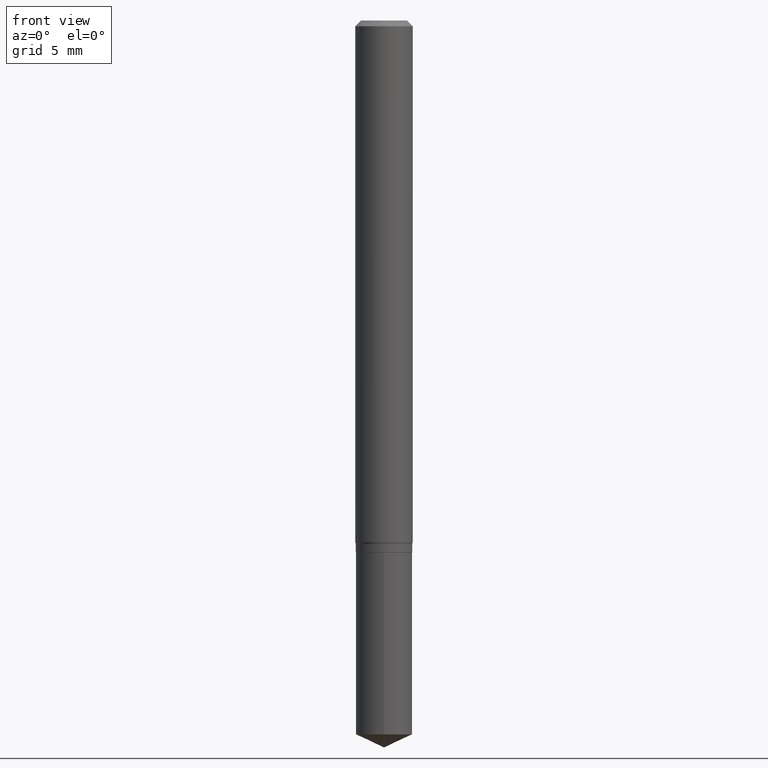
[diagram: clean part render]
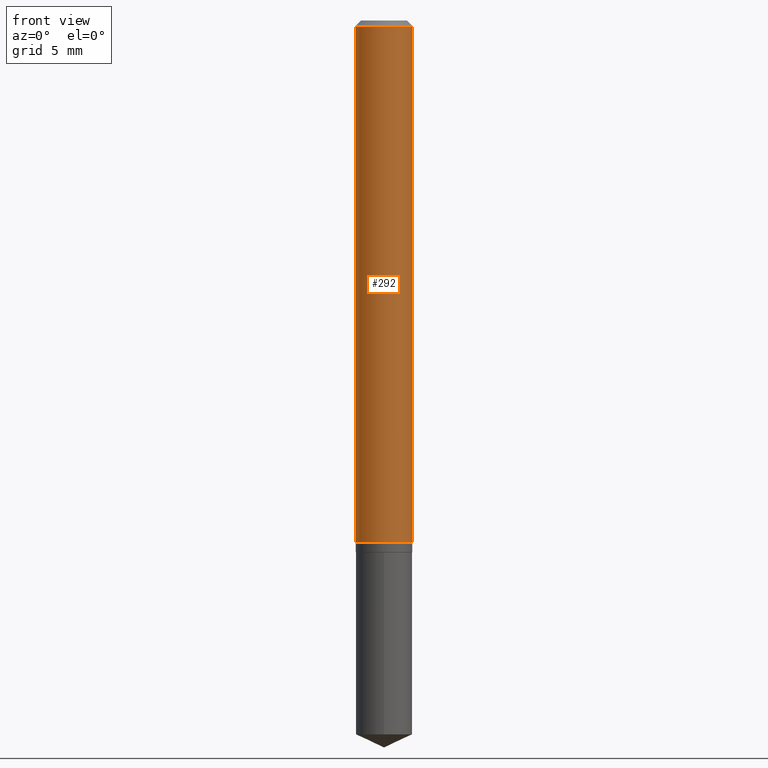
[diagram: same view with one face highlighted and labeled with its STEP entity id]
A machine part, front view. The second image highlights one B-rep face of the part: STEP entity #292.
In plain terms, the highlighted cylindrical surface (edge-blend (fillet) strip) has radius 1.4999 mm, axis along (-0, 0, 1).
Its self-contained STEP definition (entity closure, byte-faithful):
#14 = DIRECTION ( 'NONE',  ( -2.445468806185136877E-29, 3.491481338843145188E-15, 1.000000000000000000 ) ) ;
#16 = CARTESIAN_POINT ( 'NONE',  ( 0.05904999999999999832, -4.535783407291118600E-16, -0.01181000000000006350 ) ) ;
#37 = CYLINDRICAL_SURFACE ( 'NONE', #446, 0.05905000000000006771 ) ;
#71 = VERTEX_POINT ( 'NONE', #453 ) ;
#77 = DIRECTION ( 'NONE',  ( -2.445468806185136597E-29, 3.491481338843145583E-15, 1.000000000000000000 ) ) ;
#123 = CARTESIAN_POINT ( 'NONE',  ( -0.05904999999999999832, -1.474863793998382890E-15, -0.01181000000000006350 ) ) ;
#128 = ORIENTED_EDGE ( 'NONE', *, *, #481, .F. ) ;
#138 = VECTOR ( 'NONE', #295, 39.37007874015748143 ) ;
#152 = LINE ( 'NONE', #332, #138 ) ;
#170 = CIRCLE ( 'NONE', #394, 0.05905000000000013016 ) ;
#214 = ORIENTED_EDGE ( 'NONE', *, *, #228, .F. ) ;
#216 = EDGE_CURVE ( 'NONE', #71, #363, #277, .T. ) ;
#219 = CARTESIAN_POINT ( 'NONE',  ( 0.05905000000000006771, -4.123439461173745257E-16, 2.879382386107503723E-30 ) ) ;
#225 = CARTESIAN_POINT ( 'NONE',  ( -0.05905000000000013016, -3.328068678851369121E-15, -1.073367949192430615 ) ) ;
#228 = EDGE_CURVE ( 'NONE', #370, #363, #422, .T. ) ;
#249 = CARTESIAN_POINT ( 'NONE',  ( 2.888098660104662014E-31, -4.123439461173777182E-17, -0.01181000000000006350 ) ) ;
#254 = DIRECTION ( 'NONE',  ( 1.000000000000000000, -6.982962677686266711E-15, 0.000000000000000000 ) ) ;
#257 = EDGE_LOOP ( 'NONE', ( #128, #300, #421, #214 ) ) ;
#262 = EDGE_CURVE ( 'NONE', #291, #71, #170, .T. ) ;
#277 = LINE ( 'NONE', #219, #414 ) ;
#290 = CARTESIAN_POINT ( 'NONE',  ( 0.000000000000000000, 0.000000000000000000, 0.000000000000000000 ) ) ;
#291 = VERTEX_POINT ( 'NONE', #225 ) ;
#292 = ADVANCED_FACE ( 'NONE', ( #407 ), #37, .T. ) ;
#293 = DIRECTION ( 'NONE',  ( 1.000000000000000000, -6.982962677686266711E-15, 4.876176775795936353E-29 ) ) ;
#295 = DIRECTION ( 'NONE',  ( -2.445468806185136877E-29, 3.491481338843145188E-15, 1.000000000000000000 ) ) ;
#296 = AXIS2_PLACEMENT_3D ( 'NONE', #249, #362, #254 ) ;
#297 = DIRECTION ( 'NONE',  ( -2.445468806185136597E-29, 3.491481338843145583E-15, 1.000000000000000000 ) ) ;
#300 = ORIENTED_EDGE ( 'NONE', *, *, #262, .T. ) ;
#310 = CARTESIAN_POINT ( 'NONE',  ( 2.624887837309001649E-29, -3.747644164317709009E-15, -1.073367949192430615 ) ) ;
#327 = DIRECTION ( 'NONE',  ( 1.000000000000000000, -6.982962677686265133E-15, 0.000000000000000000 ) ) ;
#332 = CARTESIAN_POINT ( 'NONE',  ( -0.05905000000000006771, 4.195754854663396409E-16, -2.904631170795525045E-30 ) ) ;
#362 = DIRECTION ( 'NONE',  ( -2.445468806185136597E-29, 3.491481338843145583E-15, 1.000000000000000000 ) ) ;
#363 = VERTEX_POINT ( 'NONE', #16 ) ;
#370 = VERTEX_POINT ( 'NONE', #123 ) ;
#394 = AXIS2_PLACEMENT_3D ( 'NONE', #310, #297, #327 ) ;
#407 = FACE_OUTER_BOUND ( 'NONE', #257, .T. ) ;
#414 = VECTOR ( 'NONE', #14, 39.37007874015748143 ) ;
#421 = ORIENTED_EDGE ( 'NONE', *, *, #216, .T. ) ;
#422 = CIRCLE ( 'NONE', #296, 0.05904999999999999832 ) ;
#446 = AXIS2_PLACEMENT_3D ( 'NONE', #290, #77, #293 ) ;
#453 = CARTESIAN_POINT ( 'NONE',  ( 0.05905000000000013016, -4.159988110435083929E-15, -1.073367949192430615 ) ) ;
#481 = EDGE_CURVE ( 'NONE', #291, #370, #152, .T. ) ;